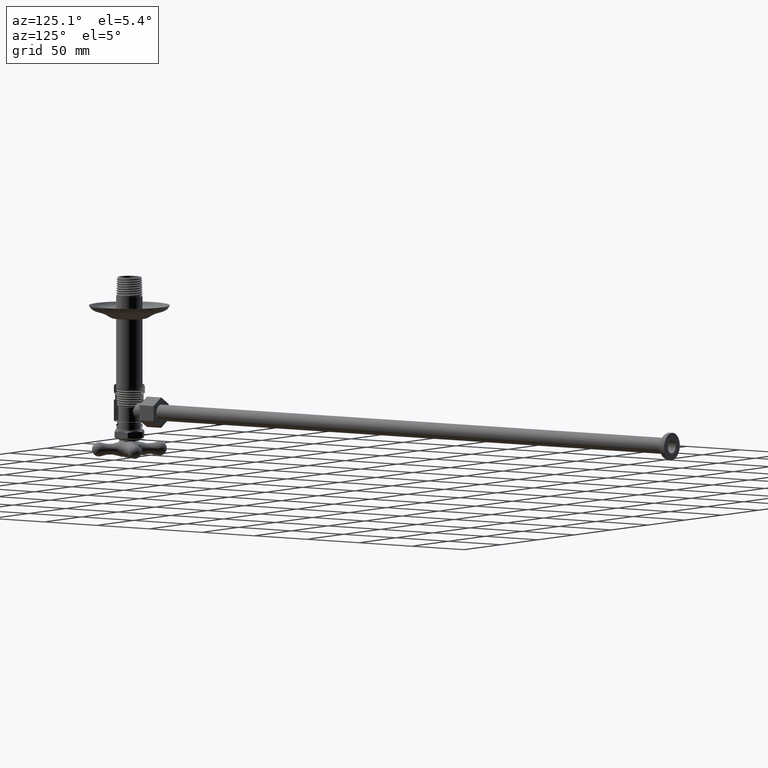
[diagram: clean part render]
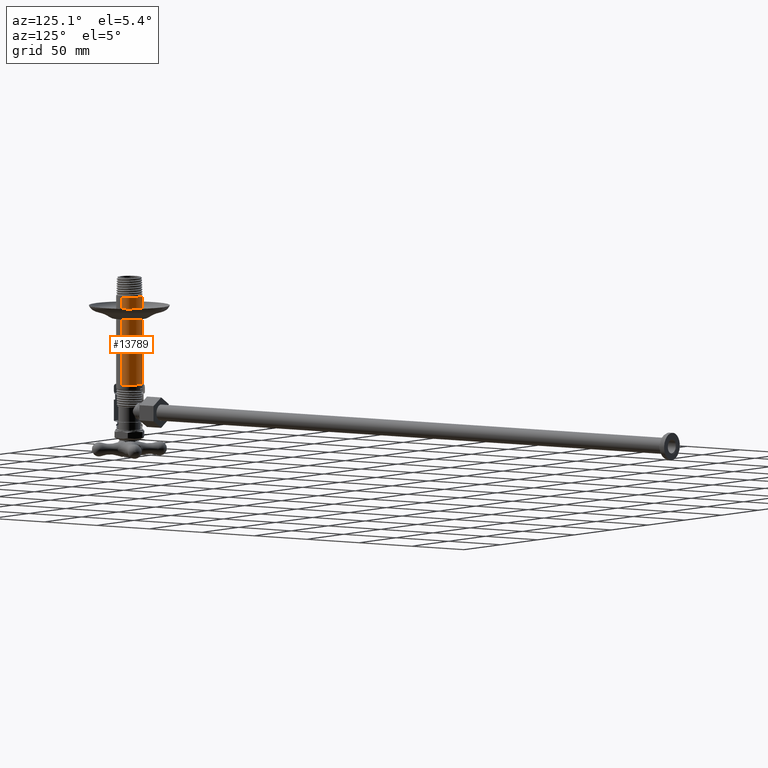
[diagram: same view with one face highlighted and labeled with its STEP entity id]
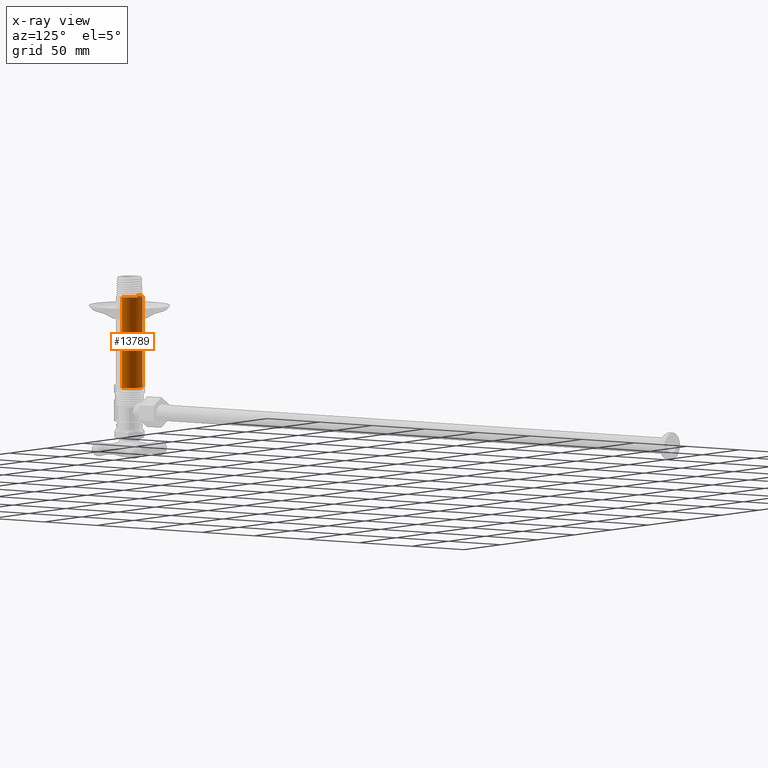
[diagram: x-ray of the same camera — body ghosted, the highlighted face saturated]
A machine part, auxiliary view. The second image highlights one B-rep face of the part: STEP entity #13789.
The next image is the same camera in x-ray: the body ghosted, the highlighted face saturated — about 0% of this face is hidden behind the body in this view.
In plain terms, the highlighted cylindrical surface (edge-blend (fillet) strip) has radius 10.2997 mm, axis along (0, 0, 1).
Its self-contained STEP definition (entity closure, byte-faithful):
#2390=CARTESIAN_POINT('',(0.E0,0.E0,7.25E-1));
#2391=DIRECTION('',(0.E0,0.E0,1.E0));
#2392=DIRECTION('',(-1.034115535551E-13,1.E0,0.E0));
#2393=AXIS2_PLACEMENT_3D('',#2390,#2391,#2392);
#2784=CARTESIAN_POINT('',(0.E0,0.E0,7.25E-1));
#2785=DIRECTION('',(0.E0,0.E0,1.E0));
#2786=DIRECTION('',(1.E0,0.E0,0.E0));
#2787=AXIS2_PLACEMENT_3D('',#2784,#2785,#2786);
#2864=DIRECTION('',(0.E0,0.E0,1.E0));
#2865=VECTOR('',#2864,2.799999999999E0);
#2866=CARTESIAN_POINT('',(-4.055E-1,-6.976892282793E-14,7.25E-1));
#2867=LINE('',#2866,#2865);
#2868=DIRECTION('',(0.E0,0.E0,-1.E0));
#2869=VECTOR('',#2868,2.8E0);
#2870=CARTESIAN_POINT('',(4.055E-1,-1.401090127400E-14,3.525E0));
#2871=LINE('',#2870,#2869);
#3150=CARTESIAN_POINT('',(0.E0,0.E0,3.525E0));
#3151=DIRECTION('',(0.E0,0.E0,-1.E0));
#3152=DIRECTION('',(-1.034115535551E-13,1.E0,0.E0));
#3153=AXIS2_PLACEMENT_3D('',#3150,#3151,#3152);
#3446=CARTESIAN_POINT('',(-1.590027926919E-6,4.054701351160E-1,3.525E0));
#3466=CARTESIAN_POINT('',(0.E0,0.E0,3.524999999998E0));
#3467=DIRECTION('',(0.E0,0.E0,-1.E0));
#3468=DIRECTION('',(-1.E0,-2.063790179004E-13,0.E0));
#3469=AXIS2_PLACEMENT_3D('',#3466,#3467,#3468);
#9063=VERTEX_POINT('',#3446);
#9067=CARTESIAN_POINT('',(-4.055E-1,-8.368669175861E-14,3.524999999998E0));
#9068=VERTEX_POINT('',#9067);
#9101=CARTESIAN_POINT('',(4.055E-1,0.E0,3.525E0));
#9102=VERTEX_POINT('',#9101);
#9110=CARTESIAN_POINT('',(-4.193338496660E-14,4.055E-1,7.25E-1));
#9111=CARTESIAN_POINT('',(-4.055E-1,-8.368669175860E-14,7.25E-1));
#9112=VERTEX_POINT('',#9110);
#9113=VERTEX_POINT('',#9111);
#9114=CARTESIAN_POINT('',(4.055E-1,0.E0,7.25E-1));
#9115=VERTEX_POINT('',#9114);
#13774=CARTESIAN_POINT('',(0.E0,0.E0,6.69E-1));
#13775=DIRECTION('',(0.E0,0.E0,1.E0));
#13776=DIRECTION('',(1.E0,0.E0,0.E0));
#13777=AXIS2_PLACEMENT_3D('',#13774,#13775,#13776);
#13778=CYLINDRICAL_SURFACE('',#13777,4.055E-1);
#13779=ORIENTED_EDGE('',*,*,#12842,.F.);
#13780=ORIENTED_EDGE('',*,*,#13427,.F.);
#13781=ORIENTED_EDGE('',*,*,#13768,.F.);
#13783=ORIENTED_EDGE('',*,*,#13782,.F.);
#13785=ORIENTED_EDGE('',*,*,#13784,.F.);
#13786=ORIENTED_EDGE('',*,*,#13762,.F.);
#13787=EDGE_LOOP('',(#13779,#13780,#13781,#13783,#13785,#13786));
#13788=FACE_OUTER_BOUND('',#13787,.F.);
#13789=ADVANCED_FACE('',(#13788),#13778,.T.);
#2394=CIRCLE('',#2393,4.055E-1);
#2788=CIRCLE('',#2787,4.055E-1);
#3154=CIRCLE('',#3153,4.055E-1);
#3470=CIRCLE('',#3469,4.055E-1);
#12842=EDGE_CURVE('',#9112,#9113,#2394,.T.);
#13427=EDGE_CURVE('',#9115,#9112,#2788,.T.);
#13762=EDGE_CURVE('',#9113,#9068,#2867,.T.);
#13768=EDGE_CURVE('',#9102,#9115,#2871,.T.);
#13782=EDGE_CURVE('',#9063,#9102,#3154,.T.);
#13784=EDGE_CURVE('',#9068,#9063,#3470,.T.);